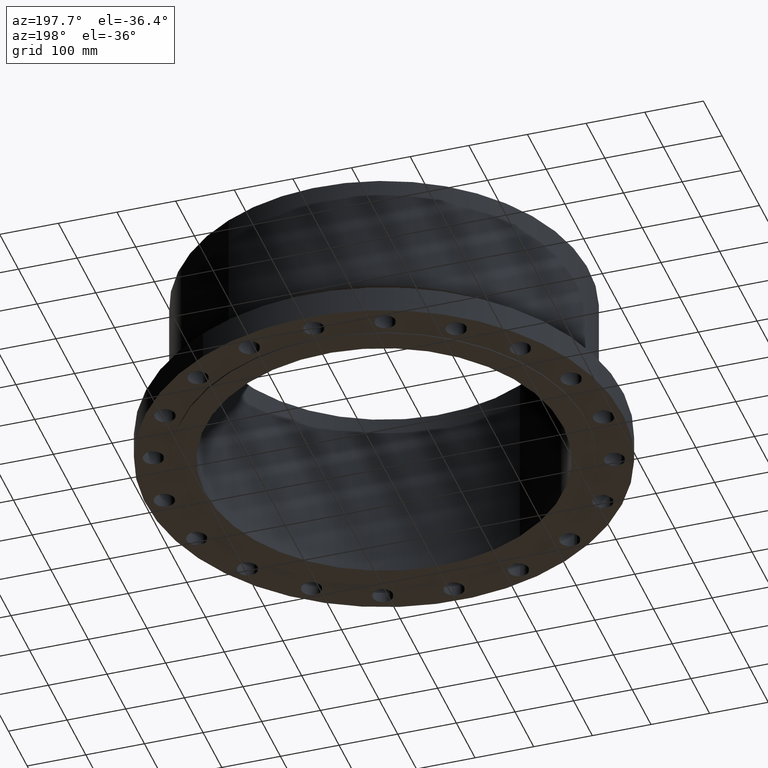
[diagram: clean part render]
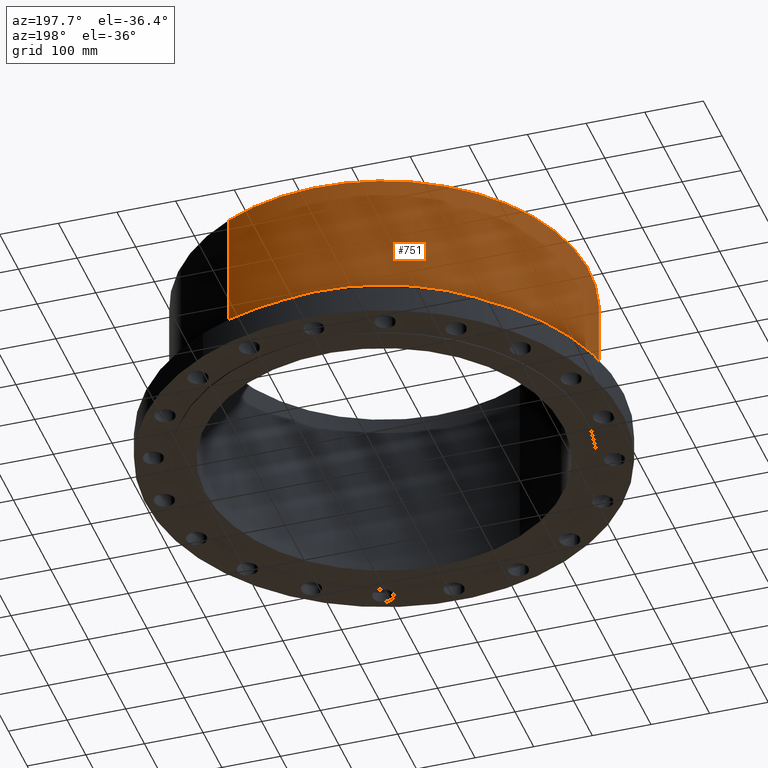
[diagram: same view with one face highlighted and labeled with its STEP entity id]
A machine part, auxiliary view. The second image highlights one B-rep face of the part: STEP entity #751.
In plain terms, the highlighted cylindrical surface (partial cylindrical patch) has radius 349.25 mm, axis along (0, 0, -1).
Its self-contained STEP definition (entity closure, byte-faithful):
#699=AXIS2_PLACEMENT_3D('Circle Axis2P3D',#697,#698,$) ;
#712=AXIS2_PLACEMENT_3D('Cylinder Axis2P3D',#709,#710,#711) ;
#742=AXIS2_PLACEMENT_3D('Circle Axis2P3D',#740,#741,$) ;
#675=CARTESIAN_POINT('Vertex',(6.59210115583,12.066760226,3.67834391826)) ;
#682=CARTESIAN_POINT('Vertex',(-6.59210115583,-12.066760226,3.67834391826)) ;
#697=CARTESIAN_POINT('Axis2P3D Location',(0.,0.,3.67834391826)) ;
#709=CARTESIAN_POINT('Axis2P3D Location',(0.,0.,5.93750000002)) ;
#714=CARTESIAN_POINT('Line Origine',(6.59210115583,12.066760226,7.80792195915)) ;
#718=CARTESIAN_POINT('Vertex',(6.59210115583,12.066760226,11.9375)) ;
#725=CARTESIAN_POINT('Vertex',(-6.59210115583,-12.066760226,11.9375)) ;
#728=CARTESIAN_POINT('Line Origine',(-6.59210115583,-12.066760226,7.80792195915)) ;
#740=CARTESIAN_POINT('Axis2P3D Location',(0.,0.,11.9375)) ;
#698=DIRECTION('Axis2P3D Direction',(-0.,0.,0.0393700787402)) ;
#710=DIRECTION('Axis2P3D Direction',(0.,0.,-0.0393700787402)) ;
#711=DIRECTION('Axis2P3D XDirection',(-0.0188750212049,-0.0345504945626,0.)) ;
#715=DIRECTION('Vector Direction',(0.,0.,-0.0393700787402)) ;
#729=DIRECTION('Vector Direction',(0.,0.,-0.0393700787402)) ;
#741=DIRECTION('Axis2P3D Direction',(0.,0.,-0.0393700787402)) ;
#716=VECTOR('Line Direction',#715,0.0393700787402) ;
#730=VECTOR('Line Direction',#729,0.0393700787402) ;
#746=ORIENTED_EDGE('',*,*,#701,.F.) ;
#747=ORIENTED_EDGE('',*,*,#732,.T.) ;
#748=ORIENTED_EDGE('',*,*,#744,.T.) ;
#749=ORIENTED_EDGE('',*,*,#720,.F.) ;
#751=ADVANCED_FACE('PartBody',(#750),#713,.T.) ;
#700=CIRCLE('generated circle',#699,13.7500000001) ;
#743=CIRCLE('generated circle',#742,13.7500000001) ;
#713=CYLINDRICAL_SURFACE('generated cylinder',#712,13.7500000001) ;
#701=EDGE_CURVE('',#683,#676,#700,.F.) ;
#720=EDGE_CURVE('',#676,#719,#717,.F.) ;
#732=EDGE_CURVE('',#683,#726,#731,.F.) ;
#744=EDGE_CURVE('',#726,#719,#743,.T.) ;
#745=EDGE_LOOP('',(#746,#747,#748,#749)) ;
#750=FACE_OUTER_BOUND('',#745,.T.) ;
#717=LINE('Line',#714,#716) ;
#731=LINE('Line',#728,#730) ;
#676=VERTEX_POINT('',#675) ;
#683=VERTEX_POINT('',#682) ;
#719=VERTEX_POINT('',#718) ;
#726=VERTEX_POINT('',#725) ;